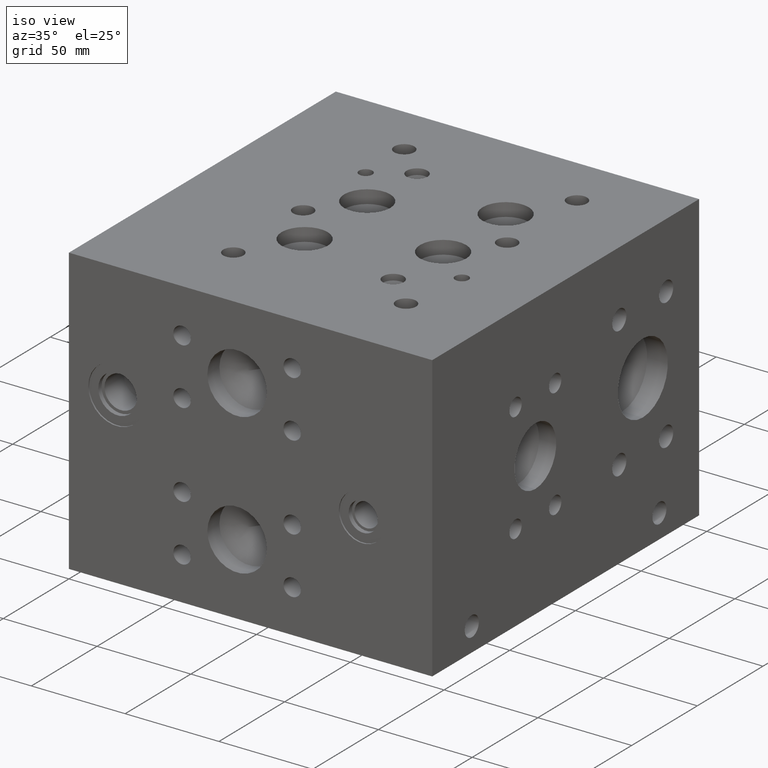
[diagram: clean part render]
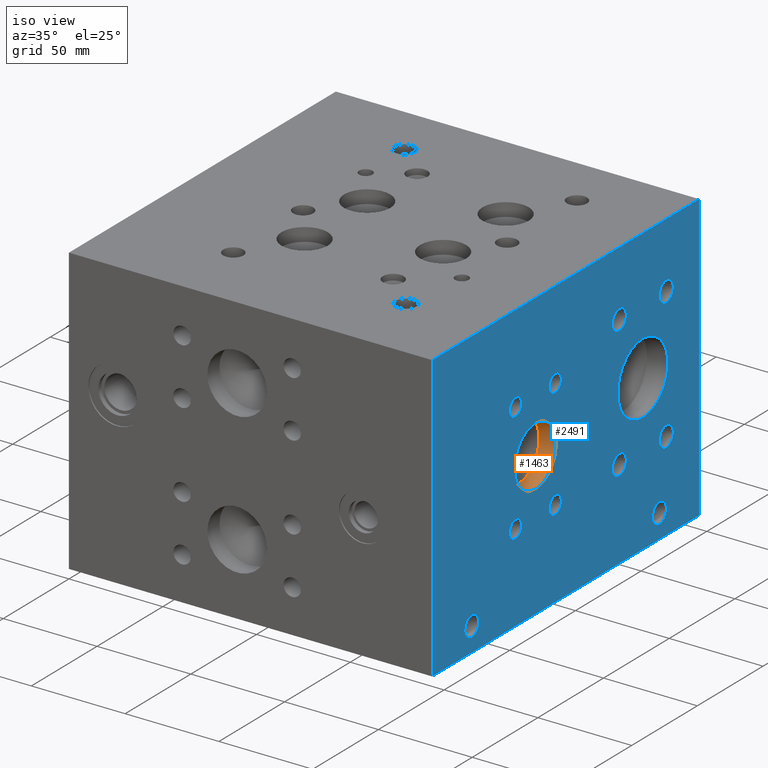
[diagram: same view with the hole feature highlighted: cylindrical wall and planar end face, labeled with their STEP entity ids]
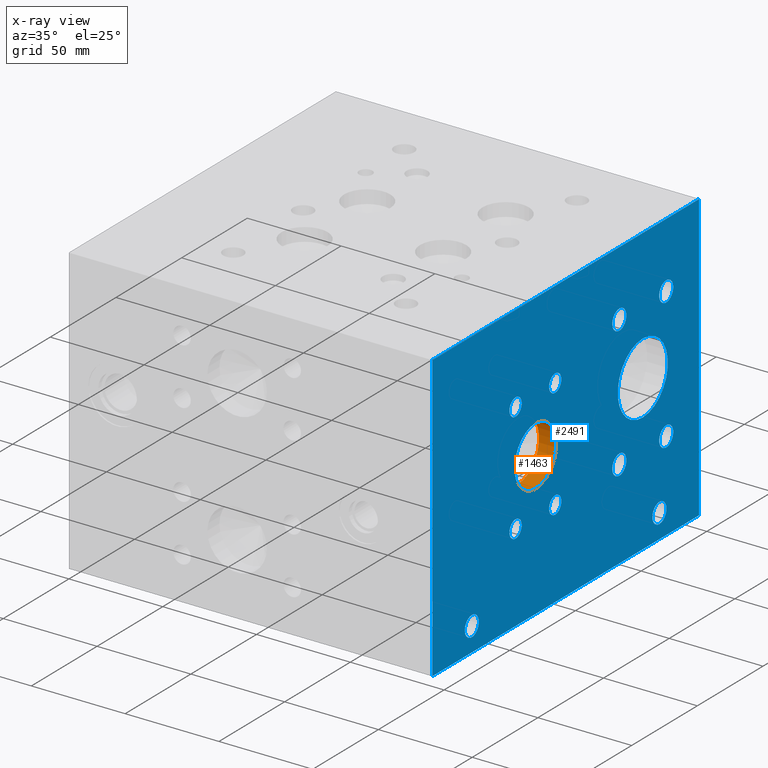
[diagram: x-ray of the same camera — body ghosted, the hole faces saturated]
A machine part, iso view. The highlighted faces form one hole feature of diameter 31.75 mm: the cylindrical wall (entity #1463, orange) and its adjacent planar end face (entity #2491, blue) — they share a circular edge in the B-rep.
The next image is the same camera in x-ray (body ghosted, the hole faces saturated) — the bore reads through the body.
Wall:
#1432=CARTESIAN_POINT('',(184.509564500000040,78.587600000000009,60.325000000000003));
#1433=VERTEX_POINT('',#1432);
#1434=CARTESIAN_POINT('',(184.509564500000040,78.587600000000009,76.200000000000017));
#1435=DIRECTION('',(1.0,0.0,0.0));
#1436=DIRECTION('',(0.0,0.0,-1.0));
#1437=AXIS2_PLACEMENT_3D('',#1434,#1435,#1436);
#1438=CIRCLE('',#1437,15.875000000000004);
#1439=EDGE_CURVE('',#1433,#1433,#1438,.T.);
#1444=CARTESIAN_POINT('',(189.092282250000040,78.587600000000009,76.200000000000017));
#1445=DIRECTION('',(1.0,0.0,0.0));
#1446=DIRECTION('',(0.0,0.0,-1.0));
#1447=AXIS2_PLACEMENT_3D('',#1444,#1445,#1446);
#1448=CYLINDRICAL_SURFACE('',#1447,15.875000000000004);
#1449=CARTESIAN_POINT('',(193.675000000000040,78.587600000000009,60.325000000000003));
#1450=VERTEX_POINT('',#1449);
#1451=CARTESIAN_POINT('',(193.675000000000040,78.587600000000009,76.200000000000017));
#1452=DIRECTION('',(-1.0,0.0,0.0));
#1453=DIRECTION('',(0.0,0.0,-1.0));
#1454=AXIS2_PLACEMENT_3D('',#1451,#1452,#1453);
#1455=CIRCLE('',#1454,15.875000000000004);
#1456=EDGE_CURVE('',#1450,#1450,#1455,.T.);
#1457=ORIENTED_EDGE('',*,*,#1456,.F.);
#1458=EDGE_LOOP('',(#1457));
#1459=FACE_OUTER_BOUND('',#1458,.T.);
#1460=ORIENTED_EDGE('',*,*,#1439,.F.);
#1461=EDGE_LOOP('',(#1460));
#1462=FACE_BOUND('',#1461,.T.);
#1463=ADVANCED_FACE('',(#1459,#1462),#1448,.F.);
End face:
#441=CARTESIAN_POINT('',(193.675000000000040,173.024800000000000,7.340600000000000));
#442=VERTEX_POINT('',#441);
#443=CARTESIAN_POINT('',(193.675000000000040,173.024800000000000,12.699999999999999));
#444=DIRECTION('',(-1.0,0.0,0.0));
#445=DIRECTION('',(0.0,0.0,-1.0));
#446=AXIS2_PLACEMENT_3D('',#443,#444,#445);
#447=CIRCLE('',#446,5.359400000000000);
#448=EDGE_CURVE('',#442,#442,#447,.T.);
#478=CARTESIAN_POINT('',(193.675000000000040,30.175200000000004,7.340600000000000));
#479=VERTEX_POINT('',#478);
#480=CARTESIAN_POINT('',(193.675000000000040,30.175200000000004,12.699999999999999));
#481=DIRECTION('',(-1.0,0.0,0.0));
#482=DIRECTION('',(0.0,0.0,-1.0));
#483=AXIS2_PLACEMENT_3D('',#480,#481,#482);
#484=CIRCLE('',#483,5.359400000000000);
#485=EDGE_CURVE('',#479,#479,#484,.T.);
#1116=CARTESIAN_POINT('',(193.675000000000040,178.206400000000000,42.265599999999999));
#1117=VERTEX_POINT('',#1116);
#1118=CARTESIAN_POINT('',(193.675000000000040,178.206400000000000,47.625000000000000));
#1119=DIRECTION('',(-1.0,0.0,0.0));
#1120=DIRECTION('',(0.0,0.0,-1.0));
#1121=AXIS2_PLACEMENT_3D('',#1118,#1119,#1120);
#1122=CIRCLE('',#1121,5.359400000000001);
#1123=EDGE_CURVE('',#1117,#1117,#1122,.T.);
#1153=CARTESIAN_POINT('',(193.675000000000040,178.206400000000000,112.115600000000000));
#1154=VERTEX_POINT('',#1153);
#1155=CARTESIAN_POINT('',(193.675000000000040,178.206400000000000,117.475000000000010));
#1156=DIRECTION('',(-1.0,0.0,0.0));
#1157=DIRECTION('',(0.0,0.0,-1.0));
#1158=AXIS2_PLACEMENT_3D('',#1155,#1156,#1157);
#1159=CIRCLE('',#1158,5.359400000000001);
#1160=EDGE_CURVE('',#1154,#1154,#1159,.T.);
#1190=CARTESIAN_POINT('',(193.675000000000040,142.494000000000030,112.115600000000000));
#1191=VERTEX_POINT('',#1190);
#1192=CARTESIAN_POINT('',(193.675000000000040,142.494000000000030,117.475000000000010));
#1193=DIRECTION('',(-1.0,0.0,0.0));
#1194=DIRECTION('',(0.0,0.0,-1.0));
#1195=AXIS2_PLACEMENT_3D('',#1192,#1193,#1194);
#1196=CIRCLE('',#1195,5.359400000000001);
#1197=EDGE_CURVE('',#1191,#1191,#1196,.T.);
#1227=CARTESIAN_POINT('',(193.675000000000040,142.494000000000030,42.265599999999999));
#1228=VERTEX_POINT('',#1227);
#1229=CARTESIAN_POINT('',(193.675000000000040,142.494000000000030,47.625000000000000));
#1230=DIRECTION('',(-1.0,0.0,0.0));
#1231=DIRECTION('',(0.0,0.0,-1.0));
#1232=AXIS2_PLACEMENT_3D('',#1229,#1230,#1231);
#1233=CIRCLE('',#1232,5.359400000000001);
#1234=EDGE_CURVE('',#1228,#1228,#1233,.T.);
#1264=CARTESIAN_POINT('',(193.675000000000040,160.350200000000000,63.500000000000007));
#1265=VERTEX_POINT('',#1264);
#1266=CARTESIAN_POINT('',(193.675000000000040,160.350200000000000,82.550000000000011));
#1267=DIRECTION('',(-1.0,0.0,0.0));
#1268=DIRECTION('',(0.0,0.0,-1.0));
#1269=AXIS2_PLACEMENT_3D('',#1266,#1267,#1268);
#1270=CIRCLE('',#1269,19.050000000000004);
#1271=EDGE_CURVE('',#1265,#1265,#1270,.T.);
#1301=CARTESIAN_POINT('',(193.675000000000040,93.675200000000004,100.888800000000020));
#1302=VERTEX_POINT('',#1301);
#1303=CARTESIAN_POINT('',(193.675000000000040,93.675200000000004,105.562400000000010));
#1304=DIRECTION('',(-1.0,0.0,0.0));
#1305=DIRECTION('',(0.0,0.0,-1.0));
#1306=AXIS2_PLACEMENT_3D('',#1303,#1304,#1305);
#1307=CIRCLE('',#1306,4.673599999999993);
#1308=EDGE_CURVE('',#1302,#1302,#1307,.T.);
#1338=CARTESIAN_POINT('',(193.675000000000040,63.500000000000007,100.888800000000020));
#1339=VERTEX_POINT('',#1338);
#1340=CARTESIAN_POINT('',(193.675000000000040,63.500000000000007,105.562400000000010));
#1341=DIRECTION('',(-1.0,0.0,0.0));
#1342=DIRECTION('',(0.0,0.0,-1.0));
#1343=AXIS2_PLACEMENT_3D('',#1340,#1341,#1342);
#1344=CIRCLE('',#1343,4.673599999999993);
#1345=EDGE_CURVE('',#1339,#1339,#1344,.T.);
#1375=CARTESIAN_POINT('',(193.675000000000040,63.500000000000007,42.164000000000001));
#1376=VERTEX_POINT('',#1375);
#1377=CARTESIAN_POINT('',(193.675000000000040,63.500000000000007,46.837600000000002));
#1378=DIRECTION('',(-1.0,0.0,0.0));
#1379=DIRECTION('',(0.0,0.0,-1.0));
#1380=AXIS2_PLACEMENT_3D('',#1377,#1378,#1379);
#1381=CIRCLE('',#1380,4.673600000000002);
#1382=EDGE_CURVE('',#1376,#1376,#1381,.T.);
#1412=CARTESIAN_POINT('',(193.675000000000040,93.675200000000004,42.164000000000001));
#1413=VERTEX_POINT('',#1412);
#1414=CARTESIAN_POINT('',(193.675000000000040,93.675200000000004,46.837600000000002));
#1415=DIRECTION('',(-1.0,0.0,0.0));
#1416=DIRECTION('',(0.0,0.0,-1.0));
#1417=AXIS2_PLACEMENT_3D('',#1414,#1415,#1416);
#1418=CIRCLE('',#1417,4.673600000000002);
#1419=EDGE_CURVE('',#1413,#1413,#1418,.T.);
#1449=CARTESIAN_POINT('',(193.675000000000040,78.587600000000009,60.325000000000003));
#1450=VERTEX_POINT('',#1449);
#1451=CARTESIAN_POINT('',(193.675000000000040,78.587600000000009,76.200000000000017));
#1452=DIRECTION('',(-1.0,0.0,0.0));
#1453=DIRECTION('',(0.0,0.0,-1.0));
#1454=AXIS2_PLACEMENT_3D('',#1451,#1452,#1453);
#1455=CIRCLE('',#1454,15.875000000000004);
#1456=EDGE_CURVE('',#1450,#1450,#1455,.T.);
#2396=CARTESIAN_POINT('',(193.675000000000040,203.199999999999990,152.400000000000030));
#2397=VERTEX_POINT('',#2396);
#2404=CARTESIAN_POINT('',(193.675000000000040,203.199999999999990,0.0));
#2405=VERTEX_POINT('',#2404);
#2406=CARTESIAN_POINT('',(193.675000000000040,203.199999999999990,0.0));
#2407=DIRECTION('',(0.0,0.0,1.0));
#2408=VECTOR('',#2407,152.400000000000030);
#2409=LINE('',#2406,#2408);
#2410=EDGE_CURVE('',#2405,#2397,#2409,.T.);
#2425=CARTESIAN_POINT('',(193.675000000000040,203.199999999999990,0.0));
#2426=DIRECTION('',(1.0,0.0,0.0));
#2427=DIRECTION('',(0.0,0.0,-1.0));
#2428=AXIS2_PLACEMENT_3D('',#2425,#2426,#2427);
#2429=PLANE('',#2428);
#2430=CARTESIAN_POINT('',(193.675000000000040,0.0,152.400000000000030));
#2431=VERTEX_POINT('',#2430);
#2432=CARTESIAN_POINT('',(193.675000000000040,203.199999999999990,152.400000000000030));
#2433=DIRECTION('',(0.0,-1.0,0.0));
#2434=VECTOR('',#2433,203.199999999999990);
#2435=LINE('',#2432,#2434);
#2436=EDGE_CURVE('',#2397,#2431,#2435,.T.);
#2437=ORIENTED_EDGE('',*,*,#2436,.T.);
#2438=CARTESIAN_POINT('',(193.675000000000040,0.0,0.0));
#2439=VERTEX_POINT('',#2438);
#2440=CARTESIAN_POINT('',(193.675000000000040,0.0,0.0));
#2441=DIRECTION('',(0.0,0.0,1.0));
#2442=VECTOR('',#2441,152.400000000000030);
#2443=LINE('',#2440,#2442);
#2444=EDGE_CURVE('',#2439,#2431,#2443,.T.);
#2445=ORIENTED_EDGE('',*,*,#2444,.F.);
#2446=CARTESIAN_POINT('',(193.675000000000040,0.0,0.0));
#2447=DIRECTION('',(0.0,1.0,0.0));
#2448=VECTOR('',#2447,203.199999999999990);
#2449=LINE('',#2446,#2448);
#2450=EDGE_CURVE('',#2439,#2405,#2449,.T.);
#2451=ORIENTED_EDGE('',*,*,#2450,.T.);
#2452=ORIENTED_EDGE('',*,*,#2410,.T.);
#2453=EDGE_LOOP('',(#2437,#2445,#2451,#2452));
#2454=FACE_OUTER_BOUND('',#2453,.T.);
#2455=ORIENTED_EDGE('',*,*,#448,.T.);
#2456=EDGE_LOOP('',(#2455));
#2457=FACE_BOUND('',#2456,.T.);
#2458=ORIENTED_EDGE('',*,*,#485,.T.);
#2459=EDGE_LOOP('',(#2458));
#2460=FACE_BOUND('',#2459,.T.);
#2461=ORIENTED_EDGE('',*,*,#1123,.T.);
#2462=EDGE_LOOP('',(#2461));
#2463=FACE_BOUND('',#2462,.T.);
#2464=ORIENTED_EDGE('',*,*,#1160,.T.);
#2465=EDGE_LOOP('',(#2464));
#2466=FACE_BOUND('',#2465,.T.);
#2467=ORIENTED_EDGE('',*,*,#1197,.T.);
#2468=EDGE_LOOP('',(#2467));
#2469=FACE_BOUND('',#2468,.T.);
#2470=ORIENTED_EDGE('',*,*,#1234,.T.);
#2471=EDGE_LOOP('',(#2470));
#2472=FACE_BOUND('',#2471,.T.);
#2473=ORIENTED_EDGE('',*,*,#1271,.T.);
#2474=EDGE_LOOP('',(#2473));
#2475=FACE_BOUND('',#2474,.T.);
#2476=ORIENTED_EDGE('',*,*,#1308,.T.);
#2477=EDGE_LOOP('',(#2476));
#2478=FACE_BOUND('',#2477,.T.);
#2479=ORIENTED_EDGE('',*,*,#1345,.T.);
#2480=EDGE_LOOP('',(#2479));
#2481=FACE_BOUND('',#2480,.T.);
#2482=ORIENTED_EDGE('',*,*,#1382,.T.);
#2483=EDGE_LOOP('',(#2482));
#2484=FACE_BOUND('',#2483,.T.);
#2485=ORIENTED_EDGE('',*,*,#1419,.T.);
#2486=EDGE_LOOP('',(#2485));
#2487=FACE_BOUND('',#2486,.T.);
#2488=ORIENTED_EDGE('',*,*,#1456,.T.);
#2489=EDGE_LOOP('',(#2488));
#2490=FACE_BOUND('',#2489,.T.);
#2491=ADVANCED_FACE('',(#2454,#2457,#2460,#2463,#2466,#2469,#2472,#2475,#2478,#2481,#2484,#2487,#2490),#2429,.T.);